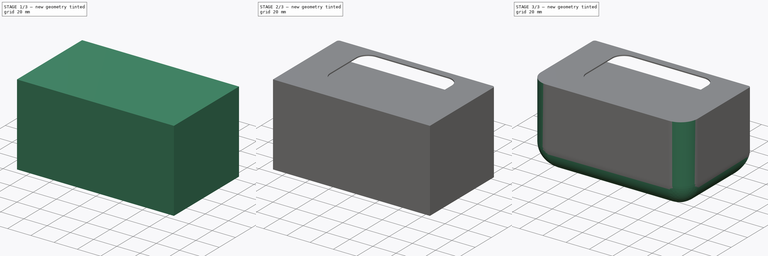
[diagram: build sequence overview — one tinted view per stage of 3, left to right]
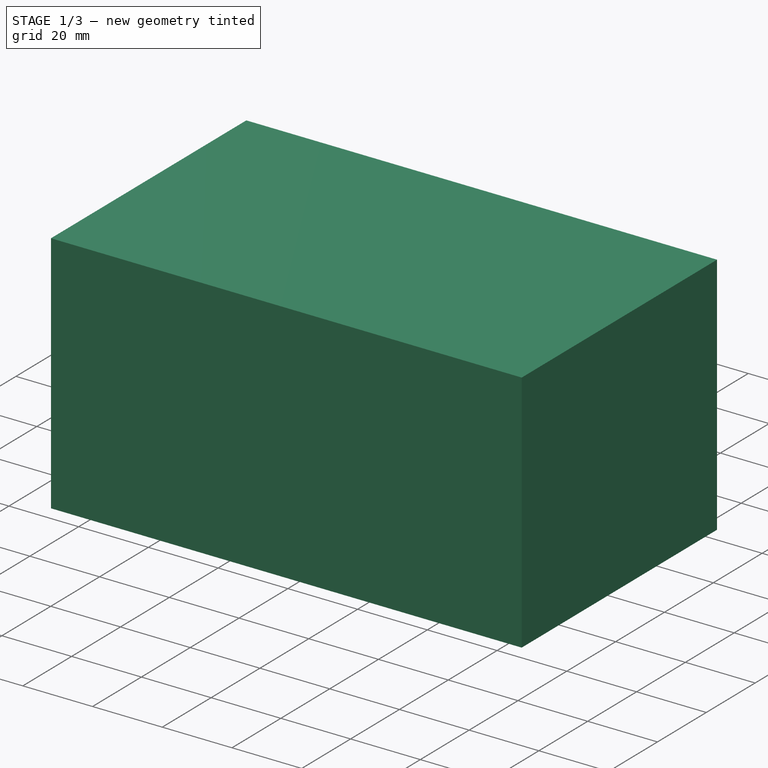
[diagram: stage 1 of 3 — iso view after this stage's code; geometry added in this stage tinted green]
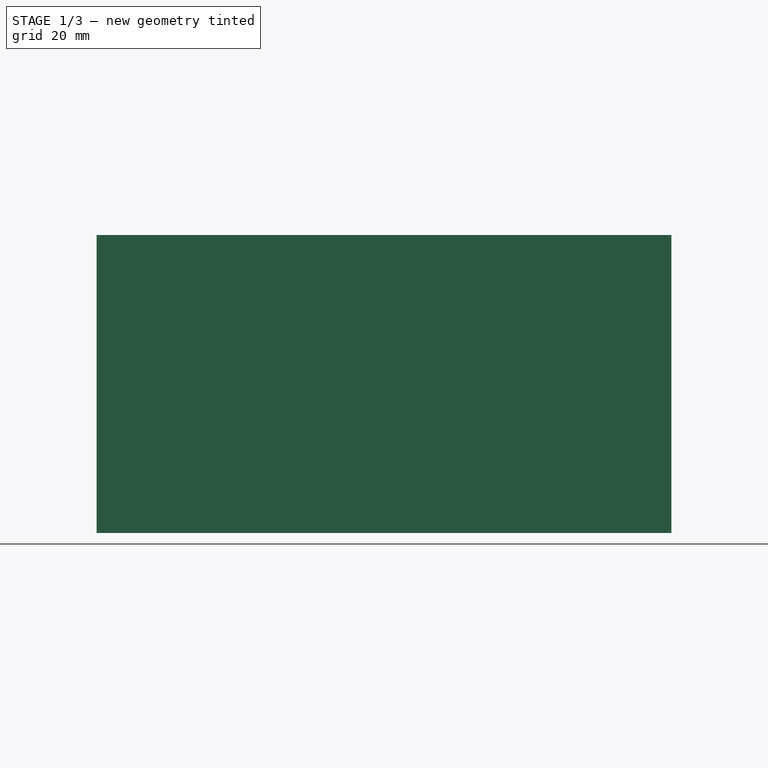
[diagram: stage 1 of 3 — front view after this stage's code; geometry added in this stage tinted green]
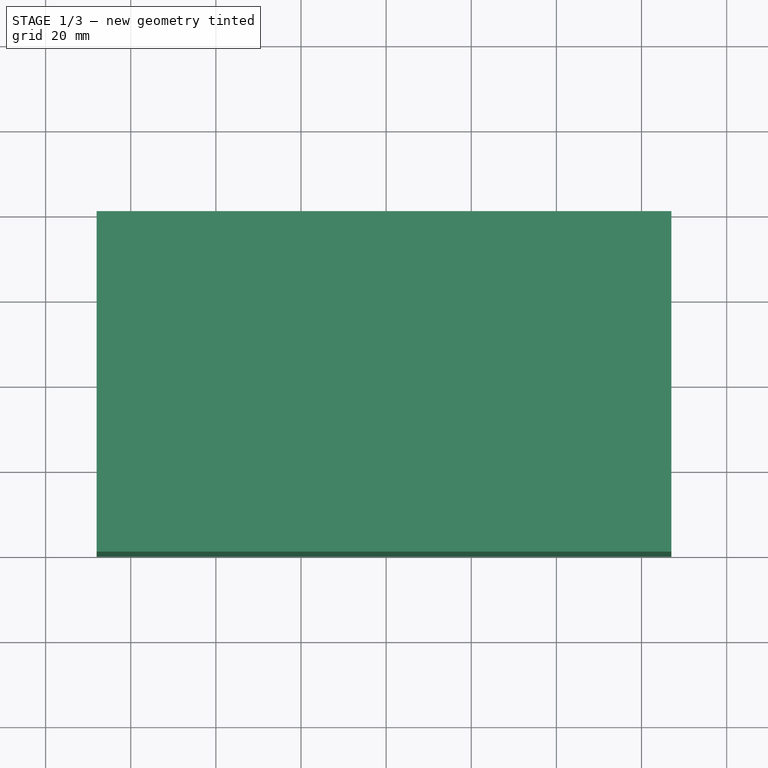
[diagram: stage 1 of 3 — top view after this stage's code; geometry added in this stage tinted green]
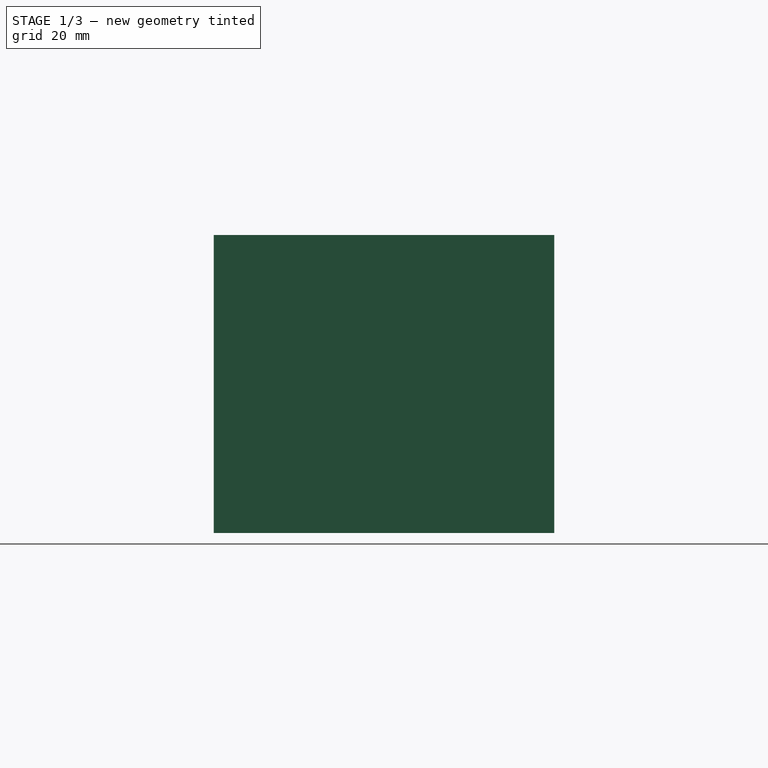
[diagram: stage 1 of 3 — right view after this stage's code; geometry added in this stage tinted green]
FCSTD DOCUMENT  (FreeCAD 0.15R4671 (Git))
Label: head_smart
License: All rights reserved
LicenseURL: http://en.wikipedia.org/wiki/All_rights_reserved
objects: Sketcher::SketchObject×4, PartDesign::Fillet×4, PartDesign::Pocket×2, PartDesign::Pad×1
note: 14 computed .brp shape members not serialized (recipe doc carries the construction recipe); baked Part::Feature solids carry a one-line shape summary decoded from their .brp

FEATURE [Sketcher::SketchObject] Sketch  label="phone"
  sketch-geometry (4):
    g0: LineSegment StartX=-62.5 StartY=0.01 StartZ=0 EndX=62.5 EndY=0.01 EndZ=0
    g1: LineSegment StartX=62.5 StartY=0.01 StartZ=0 EndX=62.5 EndY=-63.99 EndZ=0
    g2: LineSegment StartX=62.5 StartY=-63.99 StartZ=0 EndX=-62.5 EndY=-63.99 EndZ=0
    g3: LineSegment StartX=-62.5 StartY=-63.99 StartZ=0 EndX=-62.5 EndY=0.01 EndZ=0
  constraints (12):
    c: Coincident(g0,g1)
    c: Coincident(g1,g2)
    c: Coincident(g2,g3)
    c: Coincident(g3,g0)
    c: Horizontal(g0)
    c: Horizontal(g2)
    c: Vertical(g1)
    c: Vertical(g3)
    c: Distance(g0) = 125
    c: Distance(g3) = 64
    c: Symmetric(g0,g0,g-2)
    c: Distance(g-1,g0) = 0.01
FEATURE [Sketcher::SketchObject] Sketch002  label="head"
  sketch-geometry (4):
    g0: LineSegment StartX=-68 StartY=0.1 StartZ=0 EndX=67 EndY=0.1 EndZ=0
    g1: LineSegment StartX=67 StartY=0.1 StartZ=0 EndX=67 EndY=-79.9 EndZ=0
    g2: LineSegment StartX=67 StartY=-79.9 StartZ=0 EndX=-68 EndY=-79.9 EndZ=0
    g3: LineSegment StartX=-68 StartY=-79.9 StartZ=0 EndX=-68 EndY=0.1 EndZ=0
  constraints (11):
    c: Coincident(g0,g1)
    c: Coincident(g1,g2)
    c: Coincident(g2,g3)
    c: Coincident(g3,g0)
    c: Horizontal(g0)
    c: Horizontal(g2)
    c: Vertical(g1)
    c: Vertical(g3)
    c: Distance(g0) = 135
    c: Distance(g3) = 80
    c: Distance(g-1,g0) = 0.1
FEATURE [PartDesign::Pad] Pad
  Length = 70
  Length2 = 100
  Reversed = true
  Sketch = -> Sketch002
  Type = 0
FEATURE [Sketcher::SketchObject] Sketch003  label="phone_pocket"
  Placement = pos=(0,0.1,0) rot=(0,0.707107,0.707107;3.14159rad)
  Support = -> Pad [Face1]
  sketch-geometry (4):
    g0: LineSegment StartX=-64 StartY=-1 StartZ=0 EndX=64 EndY=-1 EndZ=0
    g1: LineSegment StartX=64 StartY=-1 StartZ=0 EndX=64 EndY=-14 EndZ=0
    g2: LineSegment StartX=64 StartY=-14 StartZ=0 EndX=-64 EndY=-14 EndZ=0
    g3: LineSegment StartX=-64 StartY=-14 StartZ=0 EndX=-64 EndY=-1 EndZ=0
  constraints (12):
    c: Coincident(g0,g1)
    c: Coincident(g1,g2)
    c: Coincident(g2,g3)
    c: Coincident(g3,g0)
    c: Horizontal(g0)
    c: Horizontal(g2)
    c: Vertical(g1)
    c: Vertical(g3)
    c: Distance(g0) = 128
    c: Distance(g1) = 13
    c: Distance(g-1,g0) = 1
    c: Symmetric(g2,g1,g-2)
FEATURE [PartDesign::Pocket] Pocket
  Length = 64
  Sketch = -> Sketch003
  Type = 0
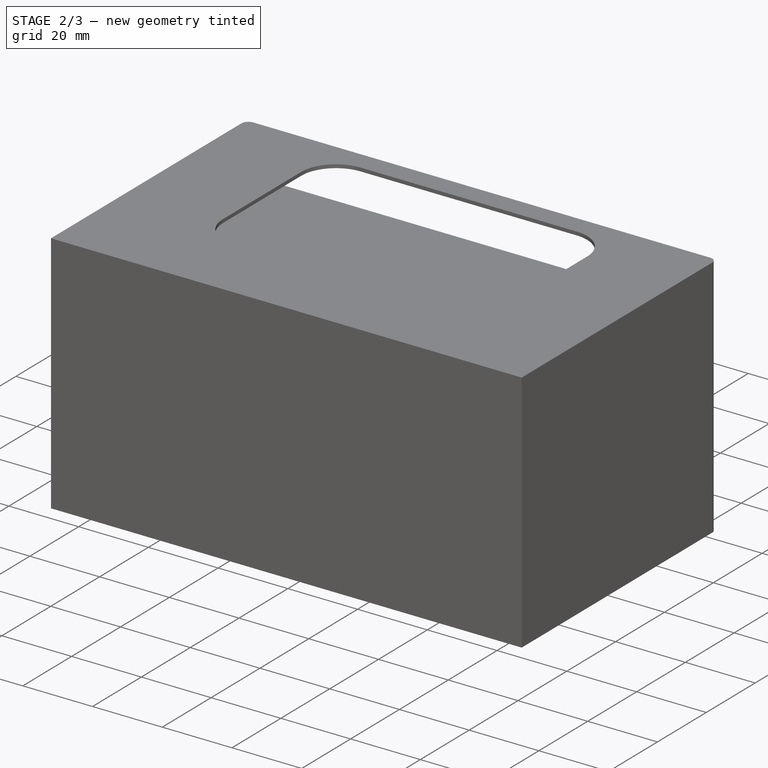
[diagram: stage 2 of 3 — iso view after this stage's code; geometry added in this stage tinted green]
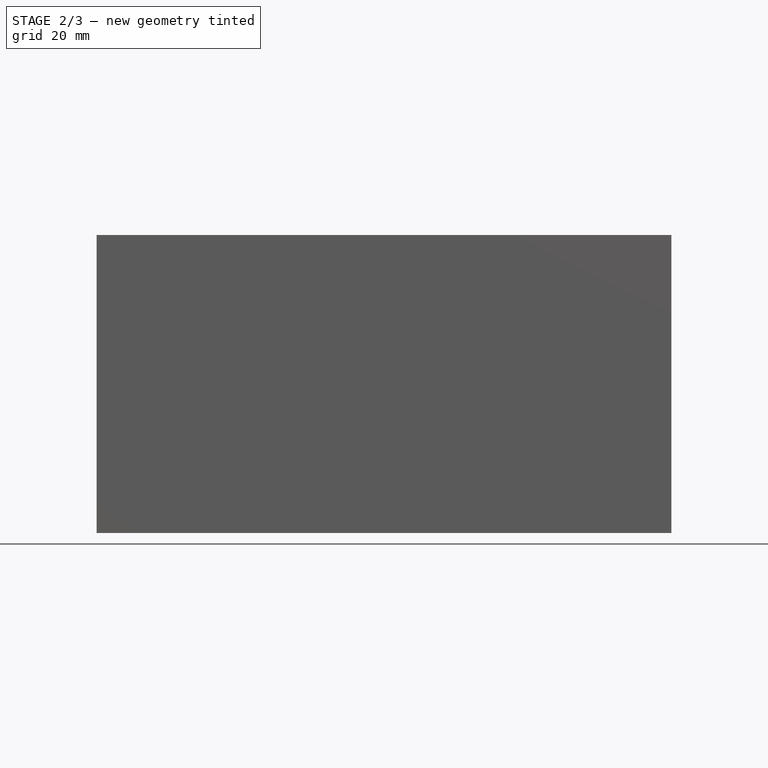
[diagram: stage 2 of 3 — front view after this stage's code; geometry added in this stage tinted green]
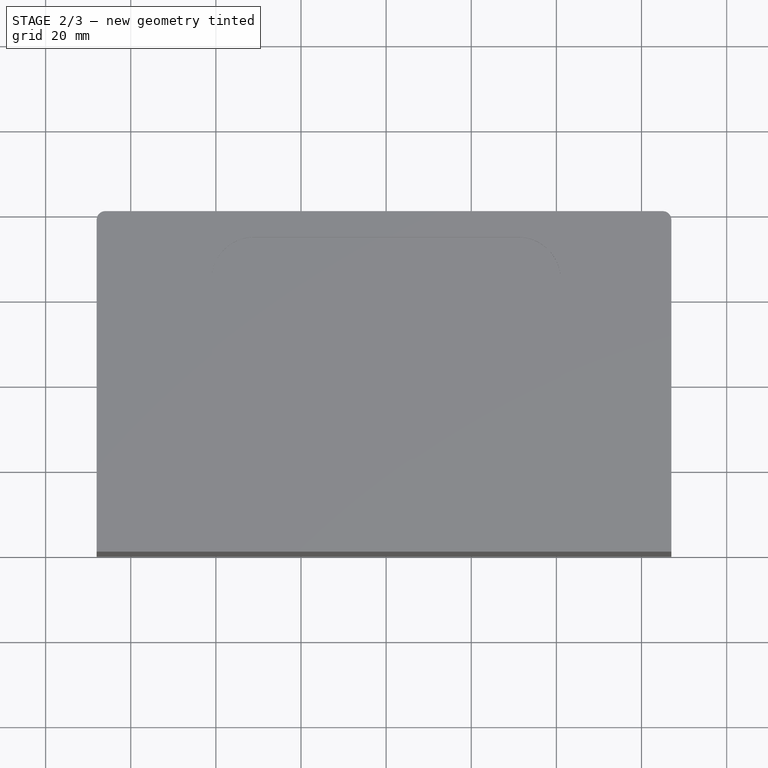
[diagram: stage 2 of 3 — top view after this stage's code; geometry added in this stage tinted green]
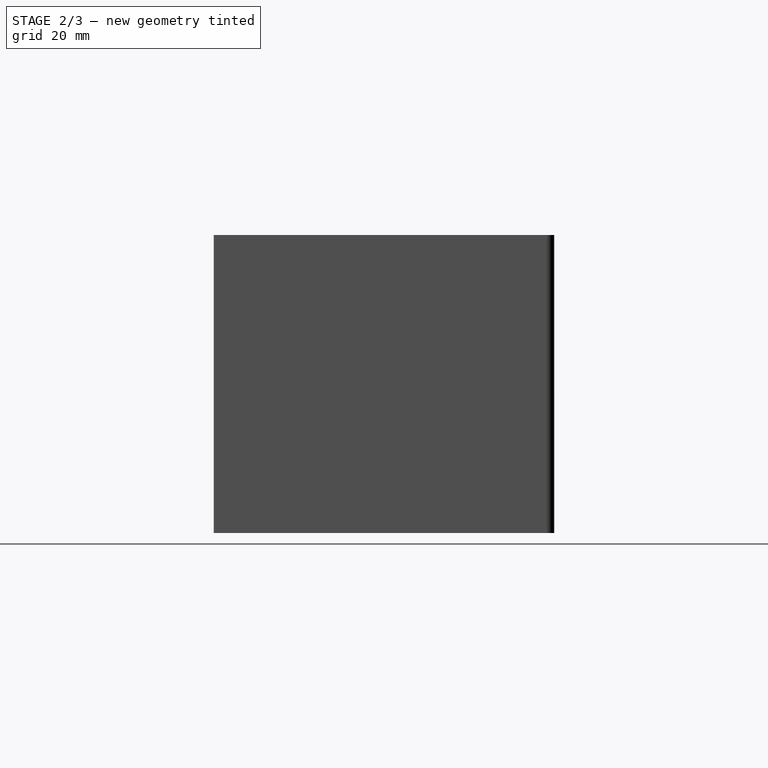
[diagram: stage 2 of 3 — right view after this stage's code; geometry added in this stage tinted green]
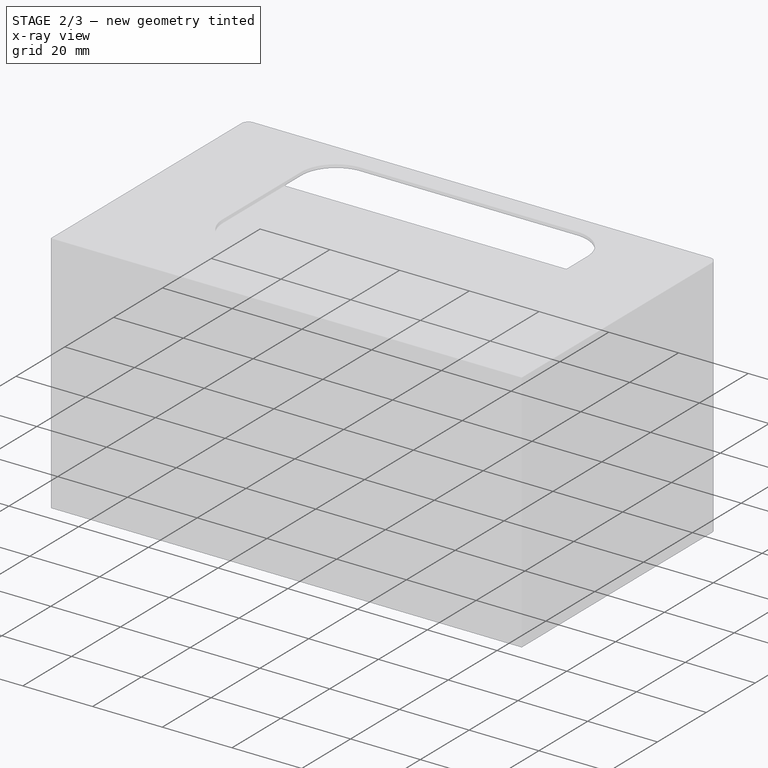
[diagram: stage 2 of 3 — x-ray composite at the iso view; earlier geometry ghosted, this stage's added geometry solid]
FEATURE [Sketcher::SketchObject] Sketch001  label="screen"
  Support = -> Pocket [Face3]
  sketch-geometry (4):
    g0: LineSegment StartX=-41 StartY=-6 StartZ=0 EndX=41 EndY=-6 EndZ=0
    g1: LineSegment StartX=41 StartY=-6 StartZ=0 EndX=41 EndY=-58 EndZ=0
    g2: LineSegment StartX=41 StartY=-58 StartZ=0 EndX=-41 EndY=-58 EndZ=0
    g3: LineSegment StartX=-41 StartY=-58 StartZ=0 EndX=-41 EndY=-6 EndZ=0
  constraints (12):
    c: Coincident(g0,g1)
    c: Coincident(g1,g2)
    c: Coincident(g2,g3)
    c: Coincident(g3,g0)
    c: Horizontal(g0)
    c: Horizontal(g2)
    c: Vertical(g1)
    c: Vertical(g3)
    c: Distance(g0) = 82
    c: Distance(g3) = 52
    c: Symmetric(g0,g0,g-2)
    c: Distance(g-1,g0) = 6
FEATURE [PartDesign::Pocket] Pocket001  label="Pocket_phone_screen"
  Length = 5
  Sketch = -> Sketch001
  Type = 2
FEATURE [PartDesign::Fillet] Fillet
  Base = -> Pocket001 [Edge34,Edge35,Edge33,Edge36]
  Radius = 10
FEATURE [PartDesign::Fillet] Fillet001
  Base = -> Fillet [Edge29,Edge31]
  Radius = 2
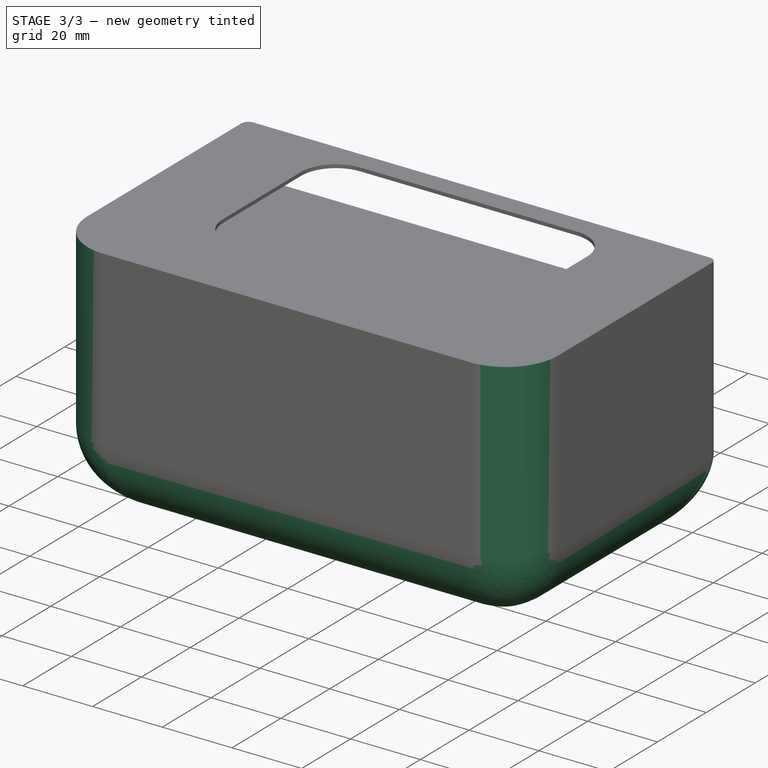
[diagram: stage 3 of 3 — iso view after this stage's code; geometry added in this stage tinted green]
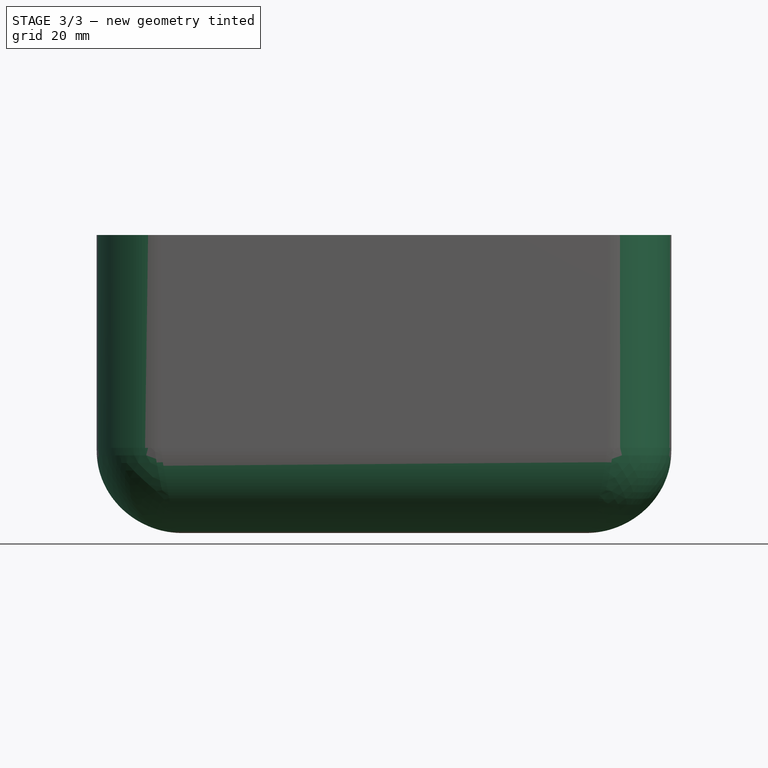
[diagram: stage 3 of 3 — front view after this stage's code; geometry added in this stage tinted green]
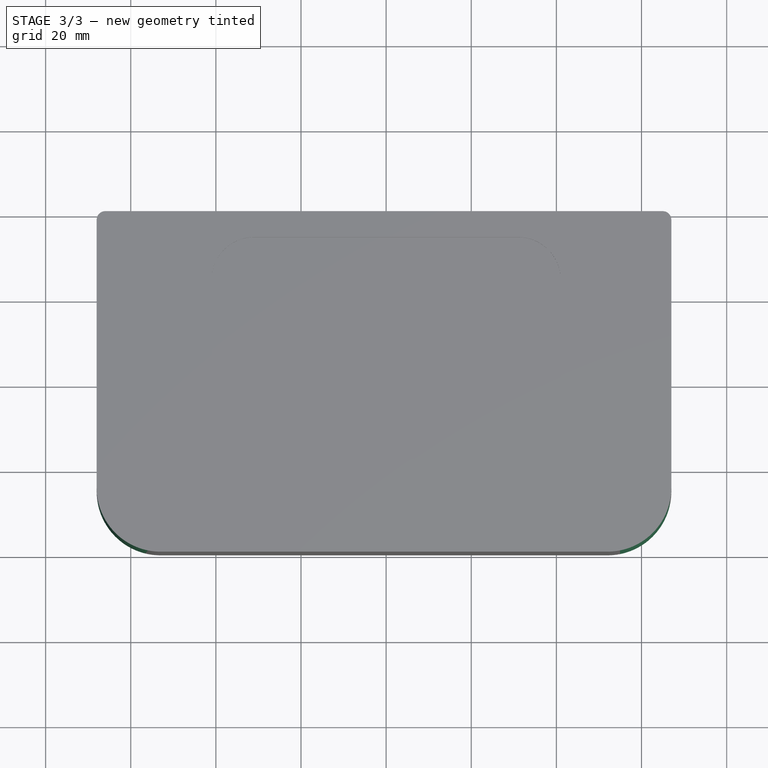
[diagram: stage 3 of 3 — top view after this stage's code; geometry added in this stage tinted green]
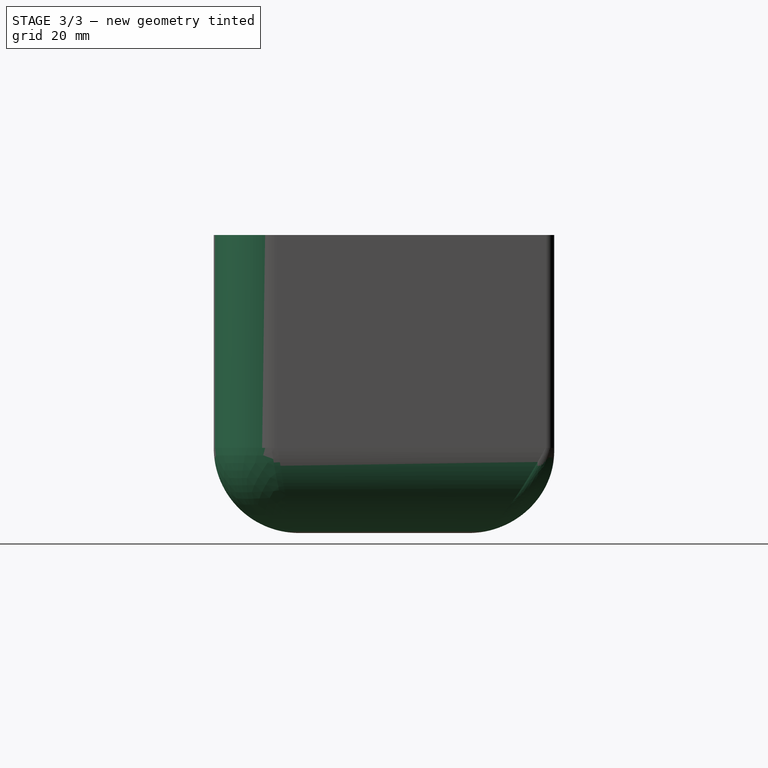
[diagram: stage 3 of 3 — right view after this stage's code; geometry added in this stage tinted green]
FEATURE [PartDesign::Fillet] Fillet002
  Base = -> Fillet001 [Edge28,Edge26]
  Radius = 15
FEATURE [PartDesign::Fillet] Fillet003
  Base = -> Fillet002 [Edge25,Edge27]
  Radius = 20
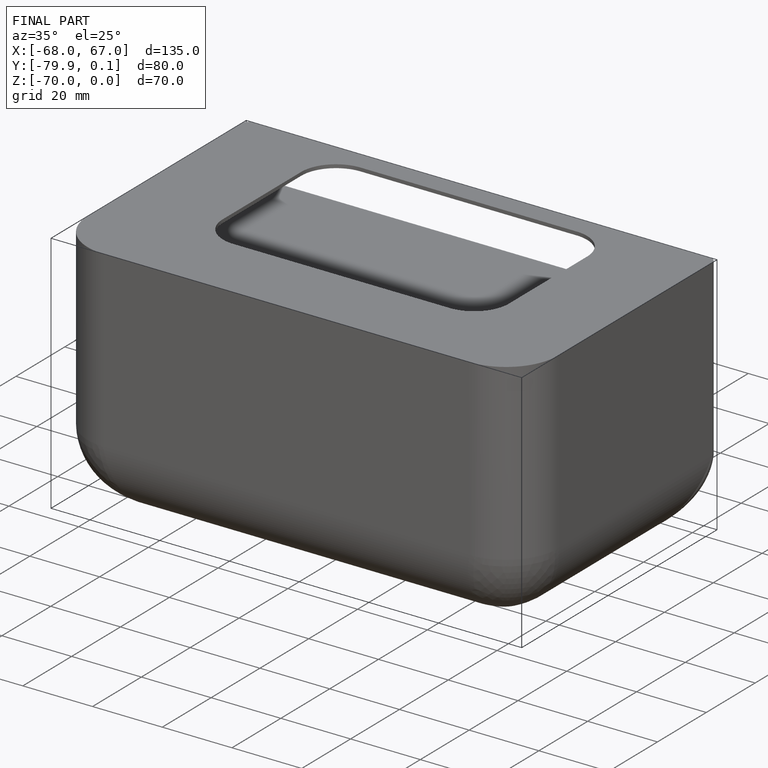
[diagram: finished part — iso view with bounding-box wireframe]
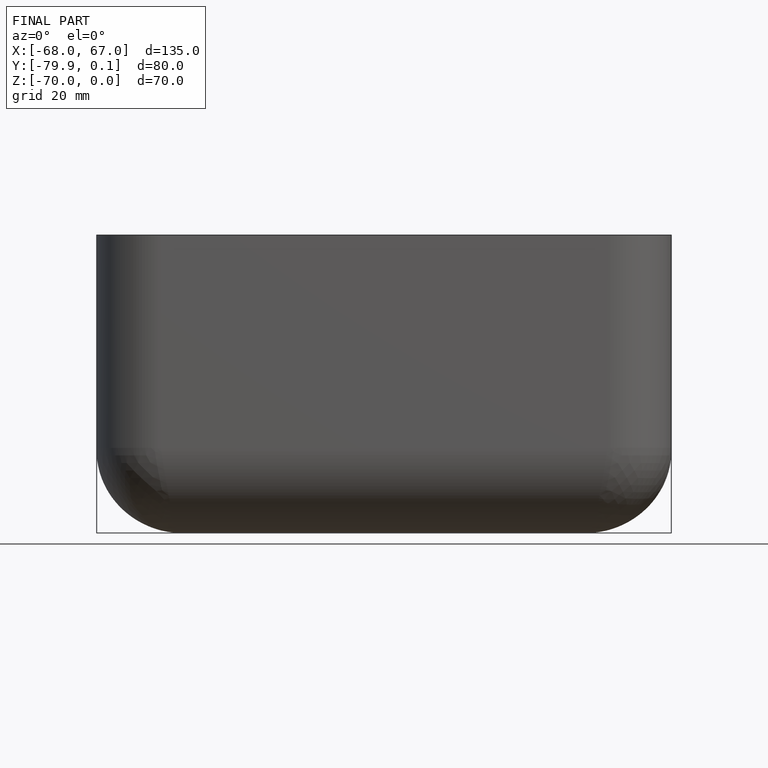
[diagram: finished part — front view with bounding-box wireframe]
